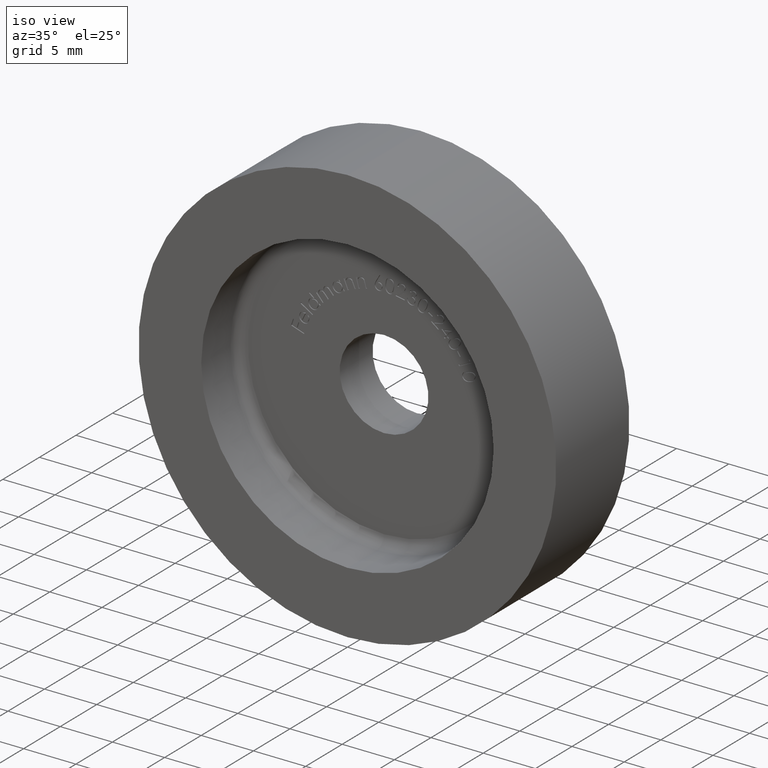
[diagram: clean part render]
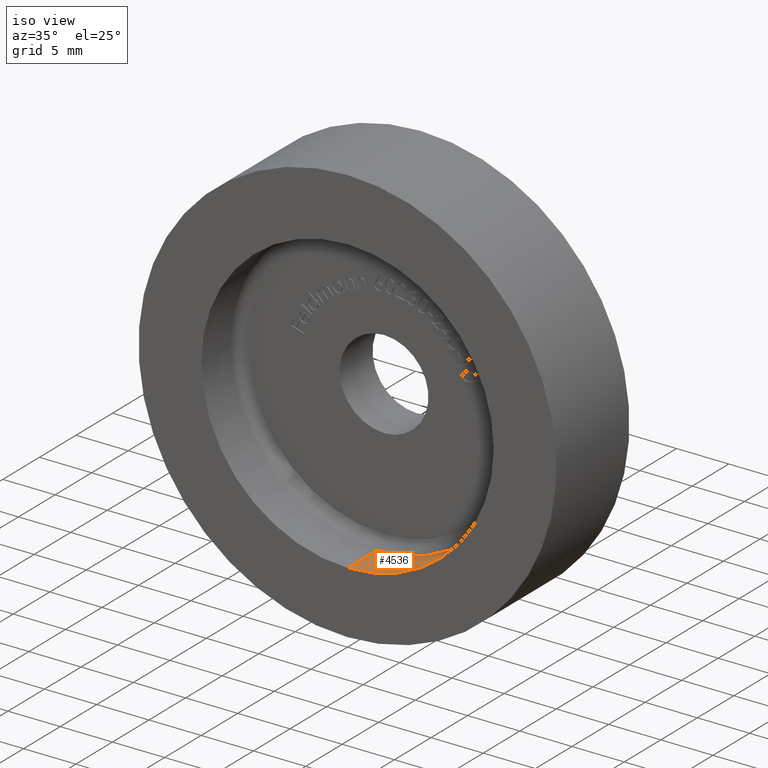
[diagram: same view with one face highlighted and labeled with its STEP entity id]
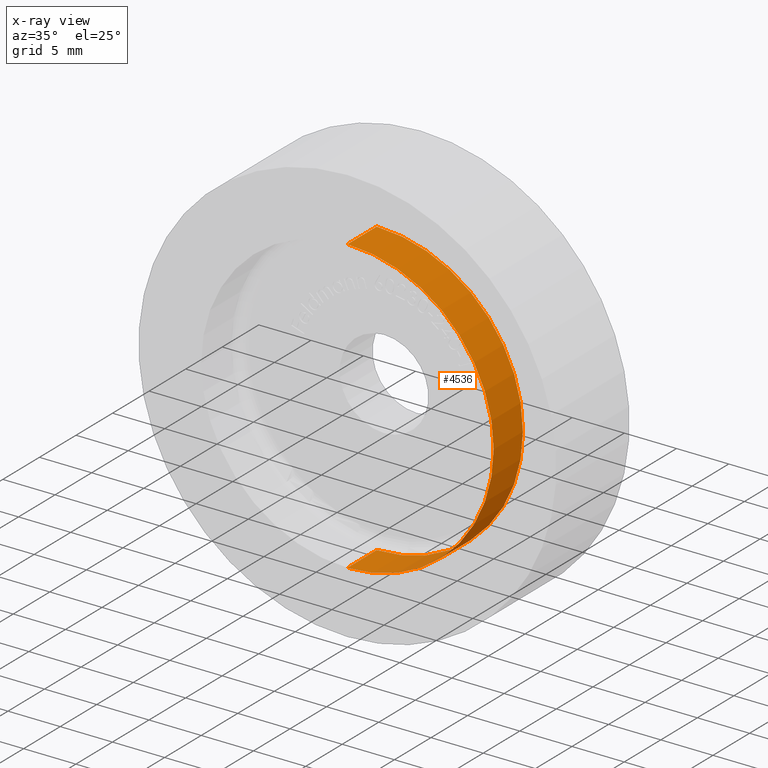
[diagram: x-ray of the same camera — body ghosted, the highlighted face saturated]
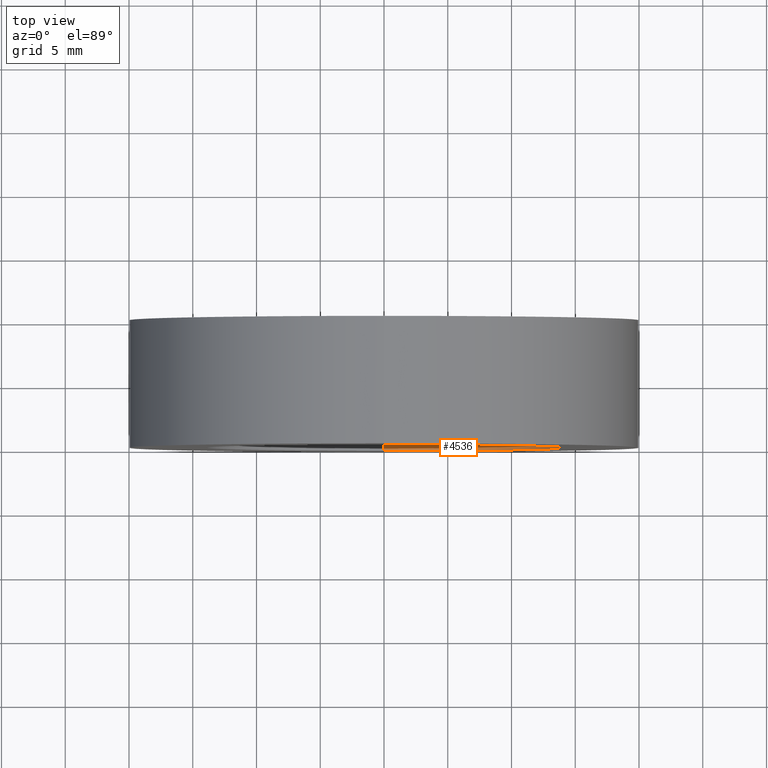
[diagram: same view with one face highlighted and labeled with its STEP entity id]
A machine part, iso view. The second image highlights one B-rep face of the part: STEP entity #4536.
The next image is the same camera in x-ray: the body ghosted, the highlighted face saturated — about 0% of this face is hidden behind the body in this view.
A second angle (top view) of the same face is appended — the face is thin or edge-on in the first view.
In plain terms, the highlighted cylindrical surface (partial cylindrical patch) has radius 14 mm, axis along (-0, -1, -0).
Its self-contained STEP definition (entity closure, byte-faithful):
#99 = EDGE_CURVE ( 'NONE', #10719, #13993, #795, .T. ) ;
#454 = EDGE_CURVE ( 'NONE', #7227, #10719, #3291, .T. ) ;
#534 = DIRECTION ( 'NONE',  ( -0.000000000000000000, -1.000000000000000000, -0.000000000000000000 ) ) ;
#795 = LINE ( 'NONE', #10957, #6196 ) ;
#856 = LINE ( 'NONE', #2898, #14230 ) ;
#1345 = ORIENTED_EDGE ( 'NONE', *, *, #3071, .T. ) ;
#1818 = CARTESIAN_POINT ( 'NONE',  ( 0.000000000000000000, 0.000000000000000000, -14.00000000000000000 ) ) ;
#2898 = CARTESIAN_POINT ( 'NONE',  ( 1.714505518806294638E-15, 49.59797974644666141, 14.00000000000000000 ) ) ;
#3071 = EDGE_CURVE ( 'NONE', #13993, #6652, #12283, .T. ) ;
#3291 = CIRCLE ( 'NONE', #13851, 14.00000000000000000 ) ;
#3538 = FACE_OUTER_BOUND ( 'NONE', #14430, .T. ) ;
#3539 = DIRECTION ( 'NONE',  ( 0.000000000000000000, 0.000000000000000000, -1.000000000000000000 ) ) ;
#4063 = CYLINDRICAL_SURFACE ( 'NONE', #8187, 14.00000000000000000 ) ;
#4065 = CARTESIAN_POINT ( 'NONE',  ( 1.714505518806294638E-15, 0.000000000000000000, 14.00000000000000000 ) ) ;
#4536 = ADVANCED_FACE ( 'NONE', ( #3538 ), #4063, .F. ) ;
#4872 = DIRECTION ( 'NONE',  ( -0.000000000000000000, 1.000000000000000000, -0.000000000000000000 ) ) ;
#5116 = DIRECTION ( 'NONE',  ( 0.000000000000000000, 0.000000000000000000, -1.000000000000000000 ) ) ;
#6196 = VECTOR ( 'NONE', #534, 1000.000000000000000 ) ;
#6652 = VERTEX_POINT ( 'NONE', #4065 ) ;
#7227 = VERTEX_POINT ( 'NONE', #14115 ) ;
#7597 = ORIENTED_EDGE ( 'NONE', *, *, #99, .T. ) ;
#8187 = AXIS2_PLACEMENT_3D ( 'NONE', #11260, #10159, #3539 ) ;
#8699 = ORIENTED_EDGE ( 'NONE', *, *, #454, .T. ) ;
#9510 = CARTESIAN_POINT ( 'NONE',  ( 0.000000000000000000, 3.999999999999996447, 0.000000000000000000 ) ) ;
#9541 = AXIS2_PLACEMENT_3D ( 'NONE', #13219, #14385, #5116 ) ;
#10159 = DIRECTION ( 'NONE',  ( -0.000000000000000000, -1.000000000000000000, -0.000000000000000000 ) ) ;
#10719 = VERTEX_POINT ( 'NONE', #13674 ) ;
#10957 = CARTESIAN_POINT ( 'NONE',  ( 0.000000000000000000, 49.59797974644666141, -14.00000000000000000 ) ) ;
#11260 = CARTESIAN_POINT ( 'NONE',  ( 0.000000000000000000, 49.59797974644666141, 0.000000000000000000 ) ) ;
#12114 = ORIENTED_EDGE ( 'NONE', *, *, #14288, .F. ) ;
#12283 = CIRCLE ( 'NONE', #9541, 14.00000000000000000 ) ;
#13219 = CARTESIAN_POINT ( 'NONE',  ( 0.000000000000000000, 0.000000000000000000, 0.000000000000000000 ) ) ;
#13473 = DIRECTION ( 'NONE',  ( -0.000000000000000000, -1.000000000000000000, -0.000000000000000000 ) ) ;
#13674 = CARTESIAN_POINT ( 'NONE',  ( 0.000000000000000000, 3.999999999999996447, -14.00000000000000000 ) ) ;
#13851 = AXIS2_PLACEMENT_3D ( 'NONE', #9510, #4872, #14210 ) ;
#13993 = VERTEX_POINT ( 'NONE', #1818 ) ;
#14115 = CARTESIAN_POINT ( 'NONE',  ( 1.714505518806294638E-15, 3.999999999999996447, 14.00000000000000000 ) ) ;
#14210 = DIRECTION ( 'NONE',  ( 0.000000000000000000, 0.000000000000000000, 1.000000000000000000 ) ) ;
#14230 = VECTOR ( 'NONE', #13473, 1000.000000000000000 ) ;
#14288 = EDGE_CURVE ( 'NONE', #7227, #6652, #856, .T. ) ;
#14385 = DIRECTION ( 'NONE',  ( 0.000000000000000000, -1.000000000000000000, 0.000000000000000000 ) ) ;
#14430 = EDGE_LOOP ( 'NONE', ( #12114, #8699, #7597, #1345 ) ) ;